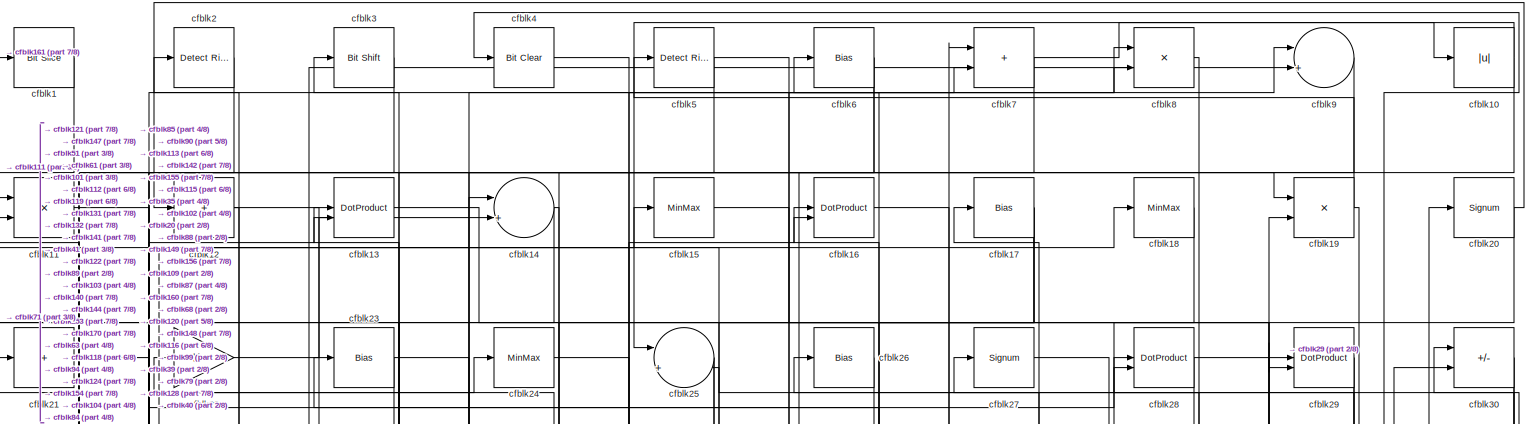
[diagram: root canvas - part 1/8, full width, top band]
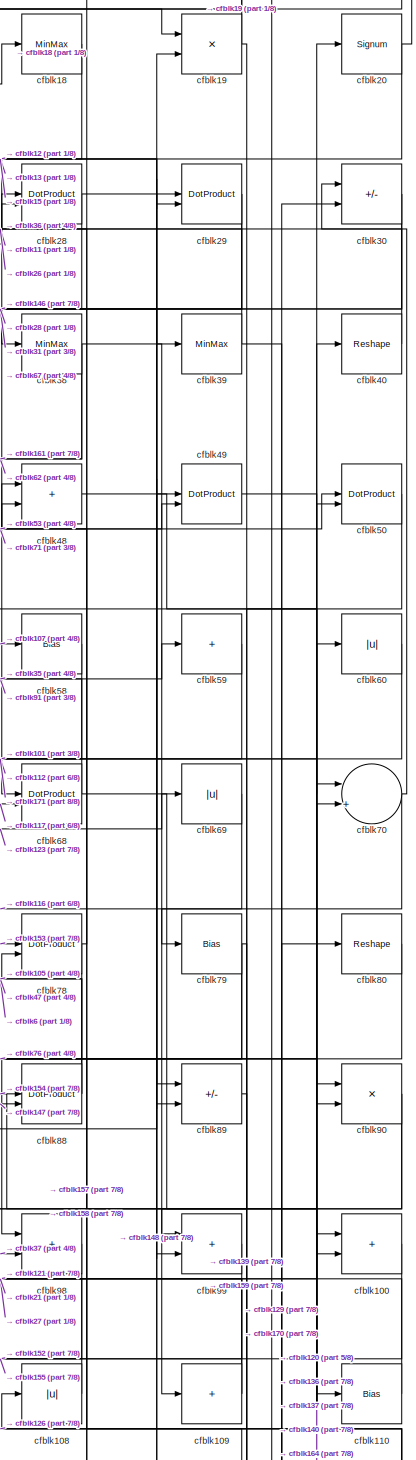
[diagram: root canvas - part 2/8, top right region]
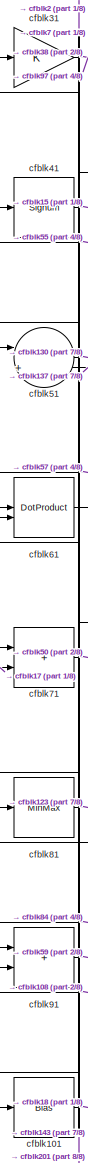
[diagram: root canvas - part 3/8, middle left region]
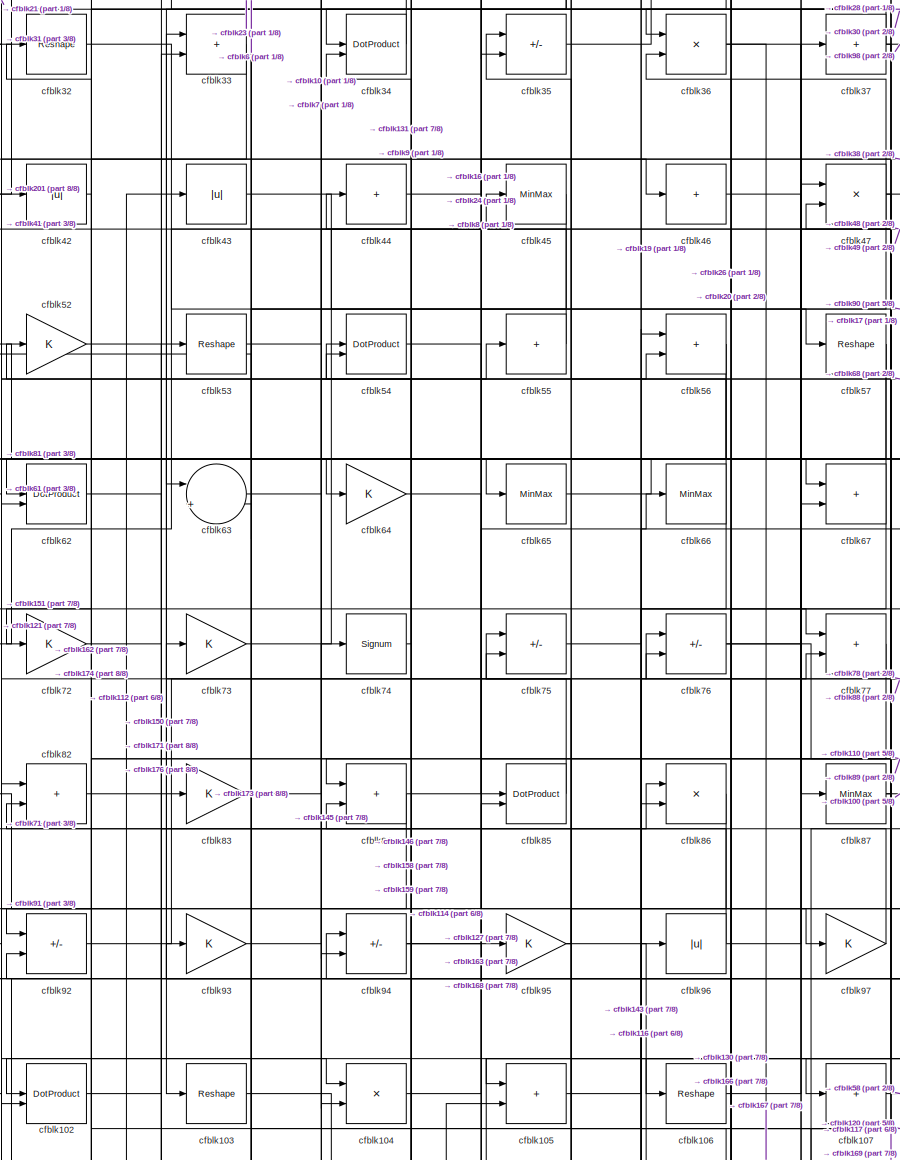
[diagram: root canvas - part 4/8, central region]
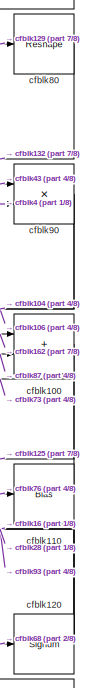
[diagram: root canvas - part 5/8, middle right region]
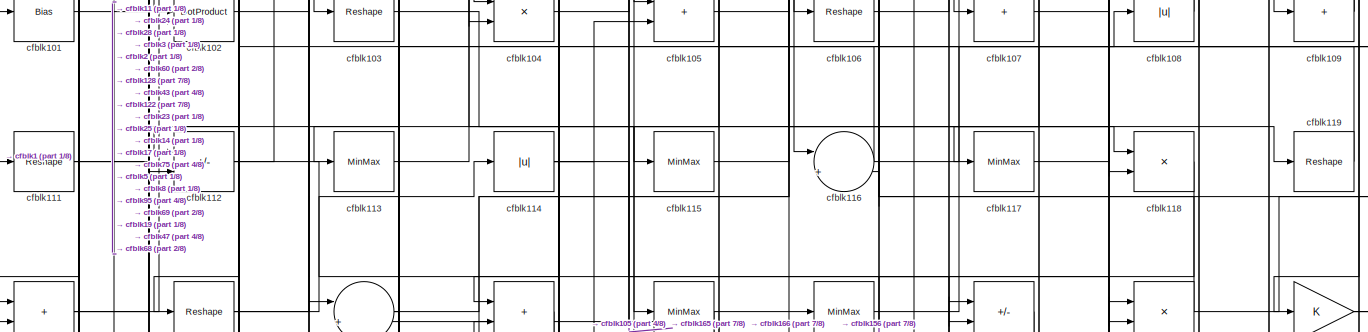
[diagram: root canvas - part 6/8, full width, middle band]
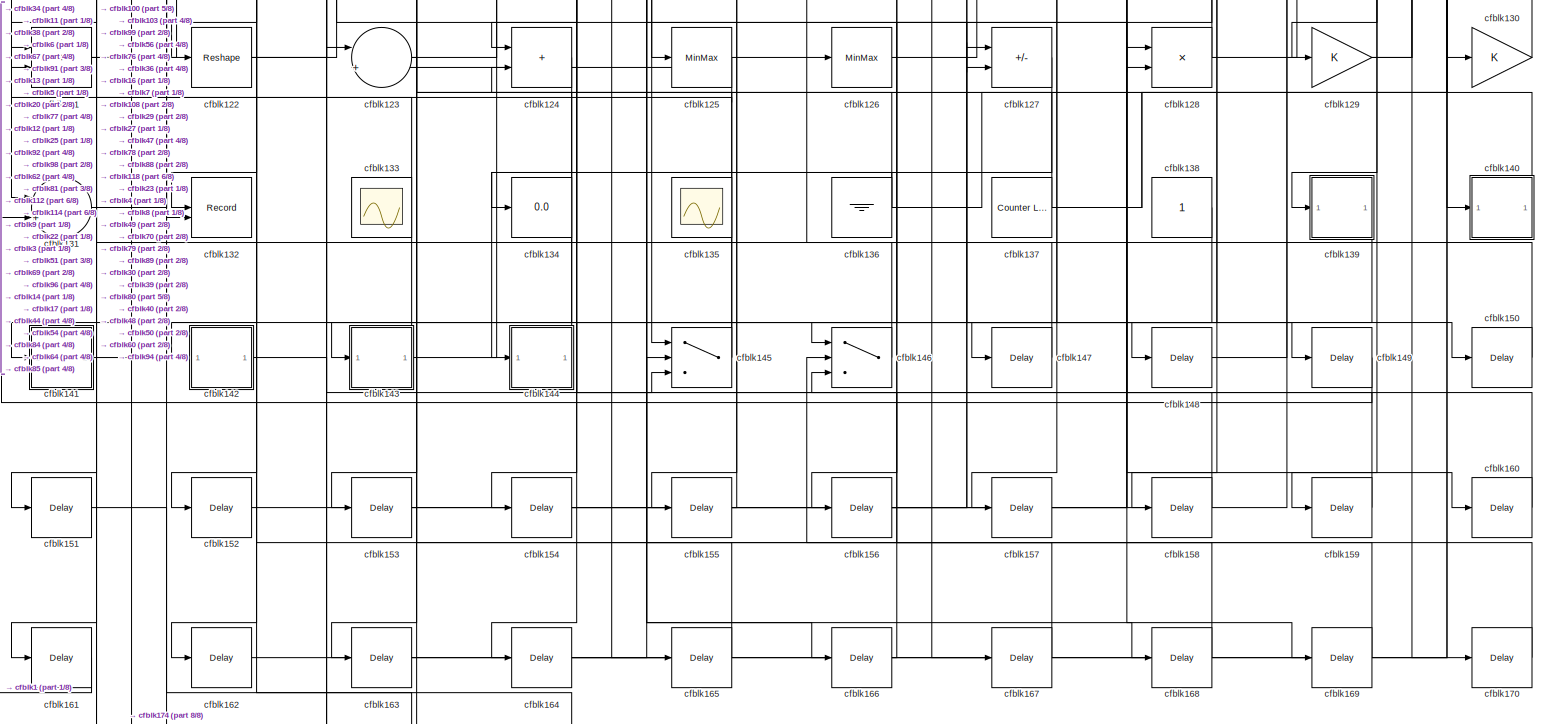
[diagram: root canvas - part 7/8, full width, bottom band]
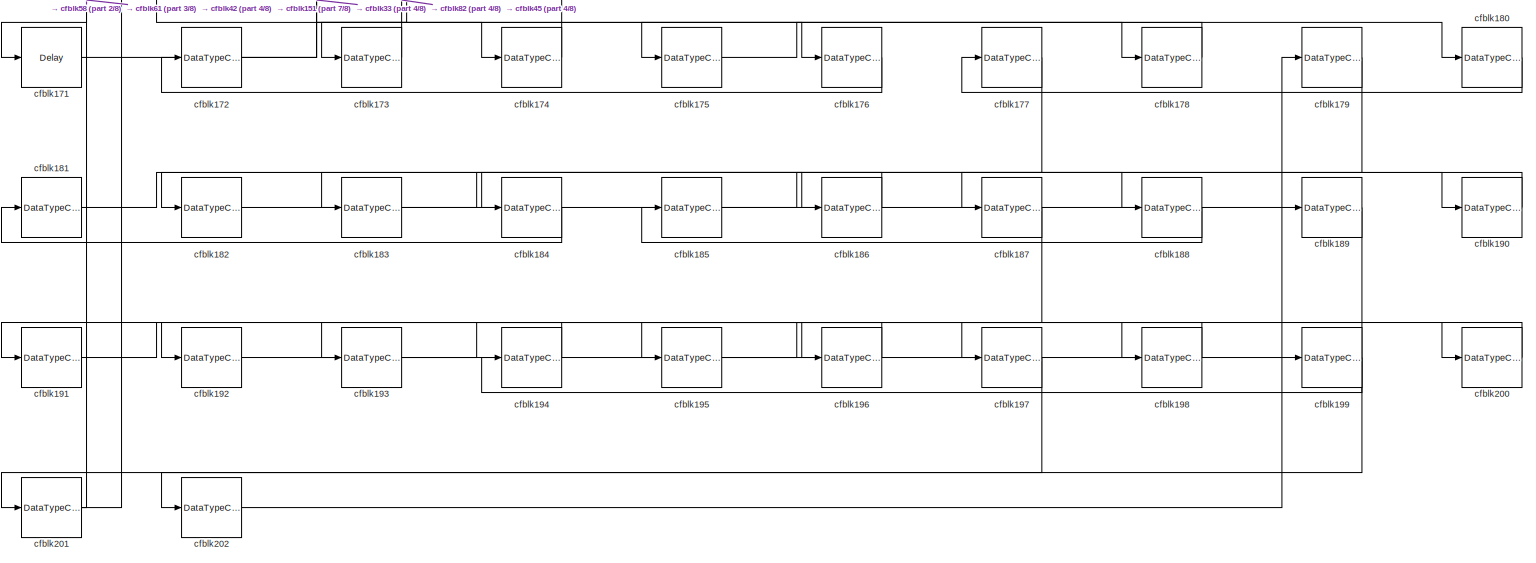
[diagram: root canvas - part 8/8, full width, bottom band]
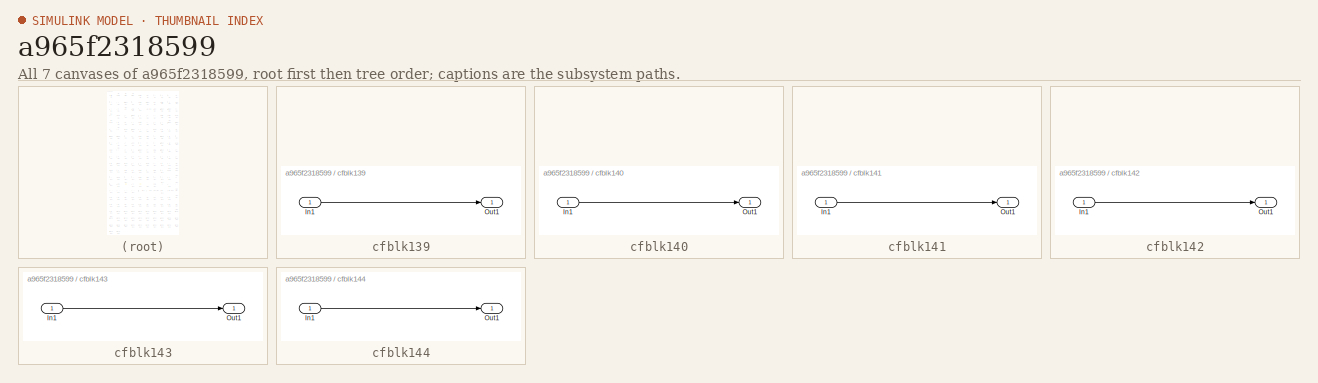
[diagram: thumbnail index - all 7 canvases of the model, root first then tree order]
MODEL slx_a965f2318599
KIND model
CONFIG AbsTol = auto
CONFIG EnableMultiTasking = off
CONFIG FixedStep = auto
CONFIG MaxStep = auto
CONFIG MinStep = auto
CONFIG RelTol = 1e-3
CONFIG SampleTimeConstraint = Unconstrained
CONFIG SolverName = VariableStepAuto
CONFIG StartTime = 0.0
CONFIG StopTime = 10.0
BLOCK [Reference] cfblk1  REF=hdlsllib/Logic and Bit
Operations/Bit Slice
  SourceBlock = hdlsllib/Logic and Bit\nOperations/Bit Slice
  SourceType = Bit Slice
BLOCK [Abs] cfblk10
  SaturateOnIntegerOverflow = off
BLOCK [Sum] cfblk100
  IconShape = rectangular
BLOCK [Bias] cfblk101
  Bias = 0.0
  SaturateOnIntegerOverflow = off
BLOCK [DotProduct] cfblk102
  OutDataTypeStr = Inherit: Inherit via internal rule
BLOCK [Reshape] cfblk103
BLOCK [Product] cfblk104
  Inputs = */
  RndMeth = Zero
  SaturateOnIntegerOverflow = on
BLOCK [Sum] cfblk105
  IconShape = rectangular
BLOCK [Reshape] cfblk106
BLOCK [Sum] cfblk107
  IconShape = rectangular
  Inputs = +
BLOCK [Abs] cfblk108
  SaturateOnIntegerOverflow = off
BLOCK [Sum] cfblk109
  IconShape = rectangular
  Inputs = +
BLOCK [Product] cfblk11
  Inputs = */
  RndMeth = Zero
  SaturateOnIntegerOverflow = on
BLOCK [Bias] cfblk110
  Bias = 0.0
  SaturateOnIntegerOverflow = off
BLOCK [Reshape] cfblk111
BLOCK [Sum] cfblk112
  IconShape = rectangular
  Inputs = +-
BLOCK [MinMax] cfblk113
BLOCK [Abs] cfblk114
  SaturateOnIntegerOverflow = off
BLOCK [MinMax] cfblk115
BLOCK [Sum] cfblk116
  Inputs = |++
BLOCK [MinMax] cfblk117
BLOCK [Product] cfblk118
  Inputs = */
  RndMeth = Zero
  SaturateOnIntegerOverflow = on
BLOCK [Reshape] cfblk119
BLOCK [Sum] cfblk12
  IconShape = rectangular
  Inputs = +
BLOCK [Signum] cfblk120
BLOCK [Sum] cfblk121
  IconShape = rectangular
BLOCK [Reshape] cfblk122
BLOCK [Sum] cfblk123
  Inputs = |++
BLOCK [Sum] cfblk124
  IconShape = rectangular
BLOCK [MinMax] cfblk125
BLOCK [MinMax] cfblk126
BLOCK [Sum] cfblk127
  IconShape = rectangular
  Inputs = +-
BLOCK [Product] cfblk128
  Inputs = */
  RndMeth = Zero
  SaturateOnIntegerOverflow = on
BLOCK [Gain] cfblk129
BLOCK [DotProduct] cfblk13
  OutDataTypeStr = Inherit: Inherit via internal rule
BLOCK [Gain] cfblk130
BLOCK [Sum] cfblk131
  Inputs = |++
BLOCK [Record] cfblk132
  CompatibilityTag = XY
  FileSettingsInternal = {"entries":[{"content":{"excelSettings":{"content":{},"type":"Streamout.ExcelSettings"}},"type":"Streamout.FileSettingStorage","uuid":""}],"packageUris":["http:\/\/schema.mathworks.com\/mf0\/streamout_blocks\/R2020a"],"version":"1.0"}
  Layout = [1 1]
  SignalsInternal = {"entries":[{"content":{"signals":[{"content":{"blockPath":[],"dimensions":[1],"domain":"","lineColor":"#a2142f","plots":[1],"port":1,"signalID":954,"signalName":"XY Graph:1"},"type":"RecordBlkView.Signal","uuid":""},{"content":{"blockPath":[],"dimensions":[1],"domain":"","lineColor":"#139fff","plots":[1],"port":2,"signalID":957,"signalName":"XY Graph:2"},"type":"RecordBlkView.Signal","uuid":""}]}...<+144ch>
  VisualizationBindings = {"xyplotplugin":{"info":[{"series":[{"bindingParametersList":[{"parameter":"X-Axis","signalID":954,"signalName":"XY Graph:1"},{"parameter":"Y-Axis","signalID":957,"signalName":"XY Graph:2"}],"seriesID":62886}],"subplotID":1}]}}
  st = -1
BLOCK [Scope] cfblk133
  Floating = on
  NumInputPorts = 1
  ScopeSpecificationString = Simulink.scopes.TimeScopeBlockCfg('CurrentConfiguration', extmgr.ConfigurationSet(extmgr.Configuration('Core','General UI',true,'FigureColor',[0.156862745098039 0.156862745098039 0.156862745098039]),extmgr.Configuration('Core','Source UI',true),extmgr.Configuration('Sources','WiredSimulink',true,'DataLoggingVariableName','ScopeData1','DataLoggingSaveFormat','StructureWithTime','DataLoggingLimitDat...<+2713ch>
BLOCK [Display] cfblk134
  Decimation = 1
BLOCK [Scope] cfblk135
  Floating = on
  NumInputPorts = 1
  ScopeSpecificationString = Simulink.scopes.TimeScopeBlockCfg('CurrentConfiguration', extmgr.ConfigurationSet(extmgr.Configuration('Core','General UI',true,'FigureColor',[0.156862745098039 0.156862745098039 0.156862745098039]),extmgr.Configuration('Core','Source UI',true),extmgr.Configuration('Sources','WiredSimulink',true,'DataLoggingVariableName','ScopeData1','DataLoggingSaveFormat','StructureWithTime','DataLoggingLimitDat...<+2713ch>
BLOCK [Ground] cfblk136
BLOCK [Reference] cfblk137  REF=hdlsllib/Sources/Counter
Limited
  SourceBlock = hdlsllib/Sources/Counter\nLimited
  SourceType = Counter Limited
BLOCK [Constant] cfblk138
  SampleTime = -1
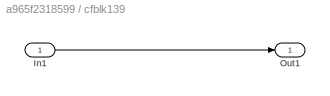
BLOCK [SubSystem] cfblk139
  LibrarySourceBlock = hdlsllib/Ports &\nSubsystems/Subsystem
BLOCK [Inport] cfblk139/In1
BLOCK [Outport] cfblk139/Out1
BLOCK [Sum] cfblk14
  Inputs = |++
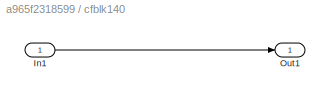
BLOCK [SubSystem] cfblk140
  LibrarySourceBlock = hdlsllib/Ports &\nSubsystems/Subsystem
BLOCK [Inport] cfblk140/In1
BLOCK [Outport] cfblk140/Out1
BLOCK [SubSystem] cfblk141
  LibrarySourceBlock = hdlsllib/Ports &\nSubsystems/Subsystem
BLOCK [Inport] cfblk141/In1
BLOCK [Outport] cfblk141/Out1
BLOCK [SubSystem] cfblk142
  LibrarySourceBlock = hdlsllib/Ports &\nSubsystems/Subsystem
BLOCK [Inport] cfblk142/In1
BLOCK [Outport] cfblk142/Out1
BLOCK [SubSystem] cfblk143
  LibrarySourceBlock = hdlsllib/Ports &\nSubsystems/Subsystem
BLOCK [Inport] cfblk143/In1
BLOCK [Outport] cfblk143/Out1
BLOCK [SubSystem] cfblk144
  LibrarySourceBlock = hdlsllib/Ports &\nSubsystems/Subsystem
BLOCK [Inport] cfblk144/In1
BLOCK [Outport] cfblk144/Out1
BLOCK [Switch] cfblk145
  InputSameDT = off
  SaturateOnIntegerOverflow = off
BLOCK [Switch] cfblk146
  InputSameDT = off
  SaturateOnIntegerOverflow = off
BLOCK [Delay] cfblk147
  InputPortMap = u0
  SampleTime = 1
BLOCK [Delay] cfblk148
  InputPortMap = u0
  SampleTime = 1
BLOCK [Delay] cfblk149
  InputPortMap = u0
  SampleTime = 1
BLOCK [MinMax] cfblk15
BLOCK [Delay] cfblk150
  InputPortMap = u0
  SampleTime = 1
BLOCK [Delay] cfblk151
  InputPortMap = u0
  SampleTime = 1
BLOCK [Delay] cfblk152
  InputPortMap = u0
  SampleTime = 1
BLOCK [Delay] cfblk153
  InputPortMap = u0
  SampleTime = 1
BLOCK [Delay] cfblk154
  InputPortMap = u0
  SampleTime = 1
BLOCK [Delay] cfblk155
  InputPortMap = u0
  SampleTime = 1
BLOCK [Delay] cfblk156
  InputPortMap = u0
  SampleTime = 1
BLOCK [Delay] cfblk157
  InputPortMap = u0
  SampleTime = 1
BLOCK [Delay] cfblk158
  InputPortMap = u0
  SampleTime = 1
BLOCK [Delay] cfblk159
  InputPortMap = u0
  SampleTime = 1
BLOCK [DotProduct] cfblk16
  OutDataTypeStr = Inherit: Inherit via internal rule
BLOCK [Delay] cfblk160
  InputPortMap = u0
  SampleTime = 1
BLOCK [Delay] cfblk161
  InputPortMap = u0
  SampleTime = 1
BLOCK [Delay] cfblk162
  InputPortMap = u0
  SampleTime = 1
BLOCK [Delay] cfblk163
  InputPortMap = u0
  SampleTime = 1
BLOCK [Delay] cfblk164
  InputPortMap = u0
  SampleTime = 1
BLOCK [Delay] cfblk165
  InputPortMap = u0
  SampleTime = 1
BLOCK [Delay] cfblk166
  InputPortMap = u0
  SampleTime = 1
BLOCK [Delay] cfblk167
  InputPortMap = u0
  SampleTime = 1
BLOCK [Delay] cfblk168
  InputPortMap = u0
  SampleTime = 1
BLOCK [Delay] cfblk169
  InputPortMap = u0
  SampleTime = 1
BLOCK [Bias] cfblk17
  Bias = 0.0
  SaturateOnIntegerOverflow = off
BLOCK [Delay] cfblk170
  InputPortMap = u0
  SampleTime = 1
BLOCK [Delay] cfblk171
  InputPortMap = u0
  SampleTime = 1
BLOCK [DataTypeConversion] cfblk172
  RndMeth = Floor
  SaturateOnIntegerOverflow = off
BLOCK [DataTypeConversion] cfblk173
  OutDataTypeStr = uint8
  RndMeth = Floor
  SaturateOnIntegerOverflow = off
BLOCK [DataTypeConversion] cfblk174
  OutDataTypeStr = uint8
  RndMeth = Floor
  SaturateOnIntegerOverflow = off
BLOCK [DataTypeConversion] cfblk175
  RndMeth = Floor
  SaturateOnIntegerOverflow = off
BLOCK [DataTypeConversion] cfblk176
  OutDataTypeStr = uint8
  RndMeth = Floor
  SaturateOnIntegerOverflow = off
BLOCK [DataTypeConversion] cfblk177
  RndMeth = Floor
  SaturateOnIntegerOverflow = off
BLOCK [DataTypeConversion] cfblk178
  OutDataTypeStr = uint8
  RndMeth = Floor
  SaturateOnIntegerOverflow = off
BLOCK [DataTypeConversion] cfblk179
  RndMeth = Floor
  SaturateOnIntegerOverflow = off
BLOCK [MinMax] cfblk18
BLOCK [DataTypeConversion] cfblk180
  OutDataTypeStr = uint8
  RndMeth = Floor
  SaturateOnIntegerOverflow = off
BLOCK [DataTypeConversion] cfblk181
  RndMeth = Floor
  SaturateOnIntegerOverflow = off
BLOCK [DataTypeConversion] cfblk182
  OutDataTypeStr = uint8
  RndMeth = Floor
  SaturateOnIntegerOverflow = off
BLOCK [DataTypeConversion] cfblk183
  RndMeth = Floor
  SaturateOnIntegerOverflow = off
BLOCK [DataTypeConversion] cfblk184
  OutDataTypeStr = uint8
  RndMeth = Floor
  SaturateOnIntegerOverflow = off
BLOCK [DataTypeConversion] cfblk185
  RndMeth = Floor
  SaturateOnIntegerOverflow = off
BLOCK [DataTypeConversion] cfblk186
  OutDataTypeStr = uint8
  RndMeth = Floor
  SaturateOnIntegerOverflow = off
BLOCK [DataTypeConversion] cfblk187
  RndMeth = Floor
  SaturateOnIntegerOverflow = off
BLOCK [DataTypeConversion] cfblk188
  OutDataTypeStr = uint8
  RndMeth = Floor
  SaturateOnIntegerOverflow = off
BLOCK [DataTypeConversion] cfblk189
  RndMeth = Floor
  SaturateOnIntegerOverflow = off
BLOCK [Product] cfblk19
  Inputs = */
  RndMeth = Zero
  SaturateOnIntegerOverflow = on
BLOCK [DataTypeConversion] cfblk190
  OutDataTypeStr = uint8
  RndMeth = Floor
  SaturateOnIntegerOverflow = off
BLOCK [DataTypeConversion] cfblk191
  RndMeth = Floor
  SaturateOnIntegerOverflow = off
BLOCK [DataTypeConversion] cfblk192
  OutDataTypeStr = uint8
  RndMeth = Floor
  SaturateOnIntegerOverflow = off
BLOCK [DataTypeConversion] cfblk193
  RndMeth = Floor
  SaturateOnIntegerOverflow = off
BLOCK [DataTypeConversion] cfblk194
  OutDataTypeStr = uint8
  RndMeth = Floor
  SaturateOnIntegerOverflow = off
BLOCK [DataTypeConversion] cfblk195
  RndMeth = Floor
  SaturateOnIntegerOverflow = off
BLOCK [DataTypeConversion] cfblk196
  OutDataTypeStr = uint8
  RndMeth = Floor
  SaturateOnIntegerOverflow = off
BLOCK [DataTypeConversion] cfblk197
  RndMeth = Floor
  SaturateOnIntegerOverflow = off
BLOCK [DataTypeConversion] cfblk198
  OutDataTypeStr = uint8
  RndMeth = Floor
  SaturateOnIntegerOverflow = off
BLOCK [DataTypeConversion] cfblk199
  RndMeth = Floor
  SaturateOnIntegerOverflow = off
BLOCK [Reference] cfblk2  REF=hdlsllib/Logic and Bit
Operations/Detect Rise
Positive
  SourceBlock = hdlsllib/Logic and Bit\nOperations/Detect Rise\nPositive
  SourceType = Detect Rise Positive
BLOCK [Signum] cfblk20
BLOCK [DataTypeConversion] cfblk200
  OutDataTypeStr = uint8
  RndMeth = Floor
  SaturateOnIntegerOverflow = off
BLOCK [DataTypeConversion] cfblk201
  RndMeth = Floor
  SaturateOnIntegerOverflow = off
BLOCK [DataTypeConversion] cfblk202
  OutDataTypeStr = uint8
  RndMeth = Floor
  SaturateOnIntegerOverflow = off
BLOCK [Sum] cfblk21
  IconShape = rectangular
  Inputs = +
BLOCK [Gain] cfblk22
BLOCK [Bias] cfblk23
  Bias = 0.0
  SaturateOnIntegerOverflow = off
BLOCK [MinMax] cfblk24
BLOCK [Sum] cfblk25
  Inputs = |++
BLOCK [Bias] cfblk26
  Bias = 0.0
  SaturateOnIntegerOverflow = off
BLOCK [Signum] cfblk27
BLOCK [DotProduct] cfblk28
  OutDataTypeStr = Inherit: Inherit via internal rule
BLOCK [DotProduct] cfblk29
  OutDataTypeStr = Inherit: Inherit via internal rule
BLOCK [Reference] cfblk3  REF=hdlsllib/Logic and Bit
Operations/Bit Shift
  SourceBlock = hdlsllib/Logic and Bit\nOperations/Bit Shift
  SourceType = Bit Shift
BLOCK [Sum] cfblk30
  IconShape = rectangular
  Inputs = +-
BLOCK [Gain] cfblk31
BLOCK [Reshape] cfblk32
BLOCK [Sum] cfblk33
  IconShape = rectangular
BLOCK [DotProduct] cfblk34
  OutDataTypeStr = Inherit: Inherit via internal rule
BLOCK [Sum] cfblk35
  IconShape = rectangular
  Inputs = +-
BLOCK [Product] cfblk36
  Inputs = */
  RndMeth = Zero
  SaturateOnIntegerOverflow = on
BLOCK [Sum] cfblk37
  IconShape = rectangular
  Inputs = +
BLOCK [MinMax] cfblk38
BLOCK [MinMax] cfblk39
BLOCK [Reference] cfblk4  REF=simulink/Logic and Bit
Operations/Bit Clear
  LibrarySourceBlock = hdlsllib/Logic and Bit\nOperations/Bit Clear
  SourceBlock = simulink/Logic and Bit\nOperations/Bit Clear
  SourceType = Bit Clear
BLOCK [Reshape] cfblk40
BLOCK [Signum] cfblk41
BLOCK [Abs] cfblk42
  SaturateOnIntegerOverflow = off
BLOCK [Abs] cfblk43
  SaturateOnIntegerOverflow = off
BLOCK [Sum] cfblk44
  IconShape = rectangular
  Inputs = +
BLOCK [MinMax] cfblk45
BLOCK [Sum] cfblk46
  IconShape = rectangular
  Inputs = +
BLOCK [Product] cfblk47
  Inputs = */
  RndMeth = Zero
  SaturateOnIntegerOverflow = on
BLOCK [Sum] cfblk48
  IconShape = rectangular
BLOCK [DotProduct] cfblk49
  OutDataTypeStr = Inherit: Inherit via internal rule
BLOCK [Reference] cfblk5  REF=hdlsllib/Logic and Bit
Operations/Detect Rise
Nonnegative
  SourceBlock = hdlsllib/Logic and Bit\nOperations/Detect Rise\nNonnegative
  SourceType = Detect Rise Nonnegative
BLOCK [DotProduct] cfblk50
  OutDataTypeStr = Inherit: Inherit via internal rule
BLOCK [Sum] cfblk51
  Inputs = |++
BLOCK [Gain] cfblk52
BLOCK [Reshape] cfblk53
BLOCK [DotProduct] cfblk54
  OutDataTypeStr = Inherit: Inherit via internal rule
BLOCK [Sum] cfblk55
  IconShape = rectangular
  Inputs = +
BLOCK [Sum] cfblk56
  IconShape = rectangular
BLOCK [Reshape] cfblk57
BLOCK [Bias] cfblk58
  Bias = 0.0
  SaturateOnIntegerOverflow = off
BLOCK [Sum] cfblk59
  IconShape = rectangular
  Inputs = +
BLOCK [Bias] cfblk6
  Bias = 0.0
  SaturateOnIntegerOverflow = off
BLOCK [Abs] cfblk60
  SaturateOnIntegerOverflow = off
BLOCK [DotProduct] cfblk61
  OutDataTypeStr = Inherit: Inherit via internal rule
BLOCK [DotProduct] cfblk62
  OutDataTypeStr = Inherit: Inherit via internal rule
BLOCK [Sum] cfblk63
  Inputs = |++
BLOCK [Gain] cfblk64
BLOCK [MinMax] cfblk65
BLOCK [MinMax] cfblk66
BLOCK [Sum] cfblk67
  IconShape = rectangular
BLOCK [DotProduct] cfblk68
  OutDataTypeStr = Inherit: Inherit via internal rule
BLOCK [Abs] cfblk69
  SaturateOnIntegerOverflow = off
BLOCK [Sum] cfblk7
  IconShape = rectangular
BLOCK [Sum] cfblk70
  Inputs = |++
BLOCK [Sum] cfblk71
  IconShape = rectangular
BLOCK [Gain] cfblk72
BLOCK [Gain] cfblk73
BLOCK [Signum] cfblk74
BLOCK [Sum] cfblk75
  IconShape = rectangular
  Inputs = +-
BLOCK [Sum] cfblk76
  IconShape = rectangular
  Inputs = +-
BLOCK [Sum] cfblk77
  IconShape = rectangular
BLOCK [DotProduct] cfblk78
  OutDataTypeStr = Inherit: Inherit via internal rule
BLOCK [Bias] cfblk79
  Bias = 0.0
  SaturateOnIntegerOverflow = off
BLOCK [Product] cfblk8
  Inputs = */
  RndMeth = Zero
  SaturateOnIntegerOverflow = on
BLOCK [Reshape] cfblk80
BLOCK [MinMax] cfblk81
BLOCK [Sum] cfblk82
  IconShape = rectangular
BLOCK [Gain] cfblk83
BLOCK [Sum] cfblk84
  IconShape = rectangular
BLOCK [DotProduct] cfblk85
  OutDataTypeStr = Inherit: Inherit via internal rule
BLOCK [Product] cfblk86
  Inputs = */
  RndMeth = Zero
  SaturateOnIntegerOverflow = on
BLOCK [MinMax] cfblk87
BLOCK [DotProduct] cfblk88
  OutDataTypeStr = Inherit: Inherit via internal rule
BLOCK [Sum] cfblk89
  IconShape = rectangular
  Inputs = +-
BLOCK [Sum] cfblk9
  Inputs = |++
BLOCK [Product] cfblk90
  Inputs = */
  RndMeth = Zero
  SaturateOnIntegerOverflow = on
BLOCK [Sum] cfblk91
  IconShape = rectangular
BLOCK [Sum] cfblk92
  IconShape = rectangular
  Inputs = +-
BLOCK [Gain] cfblk93
BLOCK [Sum] cfblk94
  IconShape = rectangular
  Inputs = +-
BLOCK [Gain] cfblk95
BLOCK [Abs] cfblk96
  SaturateOnIntegerOverflow = off
BLOCK [Gain] cfblk97
BLOCK [Sum] cfblk98
  IconShape = rectangular
BLOCK [Sum] cfblk99
  IconShape = rectangular
LINE cfblk100:1 -> cfblk125:1
LINE cfblk101:1 -> cfblk18:1
LINE cfblk102:1 -> cfblk86:1
LINE cfblk103:1 -> cfblk145:1
LINE cfblk104:1 -> cfblk16:2
LINE cfblk105:1 -> cfblk78:2
LINE cfblk106:1 -> cfblk37:1
LINE cfblk107:1 -> cfblk58:1
LINE cfblk108:1 -> cfblk31:1
NET cfblk109:1 -> cfblk21:1, cfblk27:1
NET cfblk10:1 -> cfblk25:1, cfblk94:2
LINE cfblk110:1 -> cfblk73:1
NET cfblk111:1 -> cfblk24:1, cfblk28:2
NET cfblk112:1 -> cfblk128:2, cfblk43:1
LINE cfblk113:1 -> cfblk14:1
NET cfblk114:1 -> cfblk105:2, cfblk165:1, cfblk166:1
LINE cfblk115:1 -> cfblk8:1
NET cfblk116:1 -> cfblk19:2, cfblk75:1
LINE cfblk117:1 -> cfblk68:2
LINE cfblk118:1 -> cfblk156:1
LINE cfblk119:1 -> cfblk2:1
LINE cfblk11:1 -> cfblk119:1
NET cfblk120:1 -> cfblk16:1, cfblk28:1, cfblk93:1
NET cfblk121:1 -> cfblk20:1, cfblk77:2
NET cfblk122:1 -> cfblk114:1, cfblk9:2
NET cfblk123:1 -> cfblk163:1, cfblk69:1
LINE cfblk124:1 -> cfblk141:1
NET cfblk125:1 -> cfblk123:2, cfblk126:1
LINE cfblk126:1 -> cfblk108:1
LINE cfblk127:1 -> cfblk144:1
NET cfblk128:1 -> cfblk23:1, cfblk4:1
NET cfblk129:1 -> cfblk30:2, cfblk80:1
NET cfblk12:1 -> cfblk122:1, cfblk89:1
LINE cfblk130:1 -> cfblk94:1
LINE cfblk131:1 -> cfblk13:1
NET cfblk136:1 -> cfblk124:2, cfblk134:1, cfblk40:1
NET cfblk137:1 -> cfblk50:2, cfblk51:2, cfblk60:1
LINE cfblk138:1 -> cfblk143:1
LINE cfblk139/In1:1 -> cfblk139/Out1:1
LINE cfblk139:1 -> cfblk164:1
LINE cfblk13:1 -> cfblk39:1
LINE cfblk140/In1:1 -> cfblk140/Out1:1
LINE cfblk140:1 -> cfblk22:1
LINE cfblk141/In1:1 -> cfblk141/Out1:1
LINE cfblk141:1 -> cfblk9:1
LINE cfblk142/In1:1 -> cfblk142/Out1:1
LINE cfblk142:1 -> cfblk145:3
LINE cfblk143/In1:1 -> cfblk143/Out1:1
NET cfblk143:1 -> cfblk91:2, cfblk96:1
LINE cfblk144/In1:1 -> cfblk144/Out1:1
LINE cfblk144:1 -> cfblk3:1
NET cfblk145:1 -> cfblk121:2, cfblk44:1
LINE cfblk146:1 -> cfblk54:1
LINE cfblk147:1 -> cfblk11:2
LINE cfblk148:1 -> cfblk49:1
LINE cfblk149:1 -> cfblk131:2
NET cfblk14:1 -> cfblk153:1, cfblk154:1
LINE cfblk150:1 -> cfblk56:1
LINE cfblk151:1 -> cfblk174:1
LINE cfblk152:1 -> cfblk127:1
LINE cfblk153:1 -> cfblk78:1
LINE cfblk154:1 -> cfblk88:1
LINE cfblk155:1 -> cfblk25:2
LINE cfblk156:1 -> cfblk7:1
LINE cfblk157:1 -> cfblk29:1
LINE cfblk158:1 -> cfblk34:2
LINE cfblk159:1 -> cfblk84:2
LINE cfblk15:1 -> cfblk29:2
LINE cfblk160:1 -> cfblk128:1
LINE cfblk161:1 -> cfblk1:1
LINE cfblk162:1 -> cfblk100:1
LINE cfblk163:1 -> cfblk85:2
LINE cfblk164:1 -> cfblk70:2
LINE cfblk165:1 -> cfblk145:2
LINE cfblk166:1 -> cfblk76:2
LINE cfblk167:1 -> cfblk146:3
LINE cfblk168:1 -> cfblk146:2
LINE cfblk169:1 -> cfblk92:2
LINE cfblk16:1 -> cfblk149:1
LINE cfblk170:1 -> cfblk13:2
LINE cfblk171:1 -> cfblk33:2
LINE cfblk172:1 -> cfblk178:1
LINE cfblk173:1 -> cfblk82:1
LINE cfblk174:1 -> cfblk82:2
LINE cfblk175:1 -> cfblk180:1
LINE cfblk176:1 -> cfblk172:1
LINE cfblk177:1 -> cfblk182:1
LINE cfblk178:1 -> cfblk175:1
LINE cfblk179:1 -> cfblk184:1
NET cfblk17:1 -> cfblk115:1, cfblk124:1, cfblk71:2
LINE cfblk180:1 -> cfblk177:1
LINE cfblk181:1 -> cfblk186:1
LINE cfblk182:1 -> cfblk179:1
LINE cfblk183:1 -> cfblk188:1
LINE cfblk184:1 -> cfblk181:1
LINE cfblk185:1 -> cfblk190:1
LINE cfblk186:1 -> cfblk183:1
LINE cfblk187:1 -> cfblk192:1
LINE cfblk188:1 -> cfblk185:1
LINE cfblk189:1 -> cfblk194:1
LINE cfblk18:1 -> cfblk68:1
LINE cfblk190:1 -> cfblk187:1
LINE cfblk191:1 -> cfblk196:1
LINE cfblk192:1 -> cfblk189:1
LINE cfblk193:1 -> cfblk198:1
LINE cfblk194:1 -> cfblk191:1
LINE cfblk195:1 -> cfblk200:1
LINE cfblk196:1 -> cfblk193:1
LINE cfblk197:1 -> cfblk202:1
LINE cfblk198:1 -> cfblk195:1
LINE cfblk199:1 -> cfblk201:1
NET cfblk19:1 -> cfblk5:1, cfblk79:1
LINE cfblk1:1 -> cfblk111:1
LINE cfblk200:1 -> cfblk197:1
NET cfblk201:1 -> cfblk42:1, cfblk61:2
LINE cfblk202:1 -> cfblk199:1
NET cfblk20:1 -> cfblk12:1, cfblk36:1
LINE cfblk21:1 -> cfblk104:1
LINE cfblk22:1 -> cfblk14:2
NET cfblk23:1 -> cfblk103:1, cfblk118:2
LINE cfblk24:1 -> cfblk85:1
NET cfblk25:1 -> cfblk113:1, cfblk142:1
LINE cfblk26:1 -> cfblk102:1
LINE cfblk27:1 -> cfblk160:1
NET cfblk28:1 -> cfblk35:2, cfblk99:2
NET cfblk29:1 -> cfblk147:1, cfblk88:2
LINE cfblk2:1 -> cfblk61:1
NET cfblk30:1 -> cfblk146:1, cfblk67:2
NET cfblk31:1 -> cfblk38:1, cfblk97:1
LINE cfblk32:1 -> cfblk57:1
LINE cfblk33:1 -> cfblk92:1
LINE cfblk34:1 -> cfblk131:1
LINE cfblk35:1 -> cfblk19:1
NET cfblk36:1 -> cfblk167:1, cfblk89:2
NET cfblk37:1 -> cfblk107:1, cfblk34:1, cfblk98:2
NET cfblk38:1 -> cfblk109:1, cfblk161:1, cfblk62:2
NET cfblk39:1 -> cfblk11:1, cfblk170:1
LINE cfblk3:1 -> cfblk112:2
LINE cfblk40:1 -> cfblk26:1
LINE cfblk41:1 -> cfblk15:1
LINE cfblk42:1 -> cfblk72:1
LINE cfblk43:1 -> cfblk90:1
LINE cfblk44:1 -> cfblk46:1
LINE cfblk45:1 -> cfblk173:1
LINE cfblk46:1 -> cfblk87:1
NET cfblk47:1 -> cfblk117:1, cfblk169:1, cfblk36:2, cfblk63:2
LINE cfblk48:1 -> cfblk140:1
LINE cfblk49:1 -> cfblk70:1
LINE cfblk4:1 -> cfblk90:2
LINE cfblk50:1 -> cfblk99:1
LINE cfblk51:1 -> cfblk130:1
LINE cfblk52:1 -> cfblk83:1
LINE cfblk53:1 -> cfblk49:2
LINE cfblk54:1 -> cfblk127:2
LINE cfblk55:1 -> cfblk41:1
NET cfblk56:1 -> cfblk102:2, cfblk65:1
NET cfblk57:1 -> cfblk64:1, cfblk81:1
LINE cfblk58:1 -> cfblk171:1
LINE cfblk59:1 -> cfblk101:1
NET cfblk5:1 -> cfblk118:1, cfblk132:2
LINE cfblk60:1 -> cfblk112:1
LINE cfblk61:1 -> cfblk55:1
LINE cfblk62:1 -> cfblk150:1
LINE cfblk63:1 -> cfblk7:2
LINE cfblk64:1 -> cfblk168:1
LINE cfblk65:1 -> cfblk67:1
NET cfblk66:1 -> cfblk32:1, cfblk86:2
NET cfblk67:1 -> cfblk151:1, cfblk62:1
NET cfblk68:1 -> cfblk120:1, cfblk35:1
LINE cfblk69:1 -> cfblk116:2
NET cfblk6:1 -> cfblk121:1, cfblk63:1
NET cfblk70:1 -> cfblk129:1, cfblk30:1
LINE cfblk71:1 -> cfblk50:1
LINE cfblk72:1 -> cfblk53:1
LINE cfblk73:1 -> cfblk45:1
LINE cfblk74:1 -> cfblk54:2
LINE cfblk75:1 -> cfblk77:1
NET cfblk76:1 -> cfblk110:1, cfblk48:2
LINE cfblk77:1 -> cfblk162:1
NET cfblk78:1 -> cfblk48:1, cfblk98:1
NET cfblk79:1 -> cfblk157:1, cfblk158:1, cfblk159:1
NET cfblk7:1 -> cfblk10:1, cfblk51:1
LINE cfblk80:1 -> cfblk132:1
LINE cfblk81:1 -> cfblk123:1
LINE cfblk82:1 -> cfblk176:1
LINE cfblk83:1 -> cfblk74:1
NET cfblk84:1 -> cfblk8:2, cfblk91:1
LINE cfblk85:1 -> cfblk33:1
LINE cfblk86:1 -> cfblk105:1
NET cfblk87:1 -> cfblk100:2, cfblk17:1
NET cfblk88:1 -> cfblk47:2, cfblk6:1
LINE cfblk89:1 -> cfblk139:1
LINE cfblk8:1 -> cfblk148:1
NET cfblk90:1 -> cfblk104:2, cfblk106:1
LINE cfblk91:1 -> cfblk59:1
LINE cfblk92:1 -> cfblk76:1
LINE cfblk93:1 -> cfblk56:2
NET cfblk94:1 -> cfblk66:1, cfblk95:1
NET cfblk95:1 -> cfblk116:1, cfblk75:2
NET cfblk96:1 -> cfblk47:1, cfblk52:1
LINE cfblk97:1 -> cfblk71:1
LINE cfblk98:1 -> cfblk152:1
LINE cfblk99:1 -> cfblk155:1
LINE cfblk9:1 -> cfblk84:1
note: NET lines group one-source signal fan-out (src -> all destinations, sorted); 1:1 wires keep LINE
